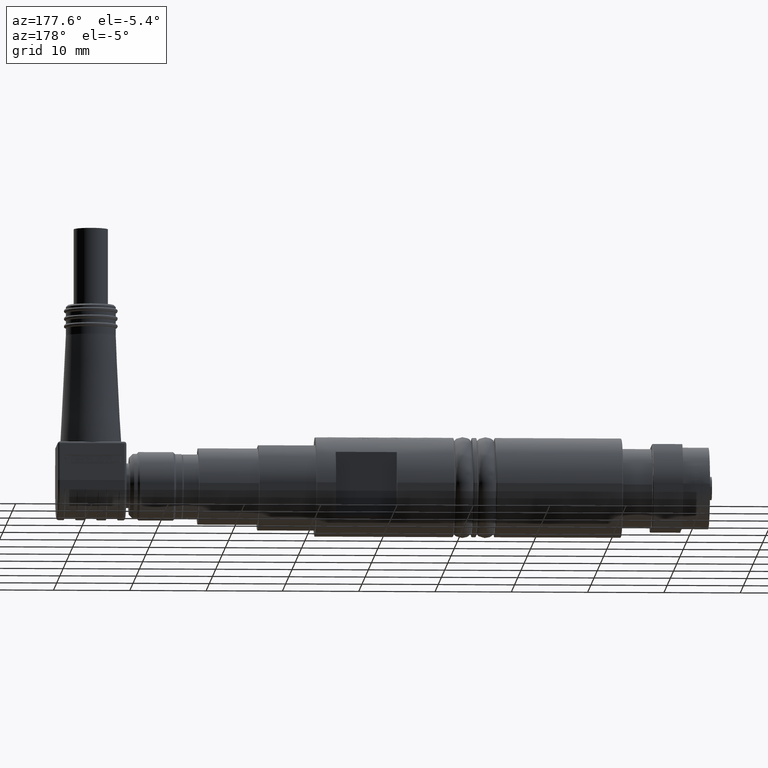
[diagram: clean part render]
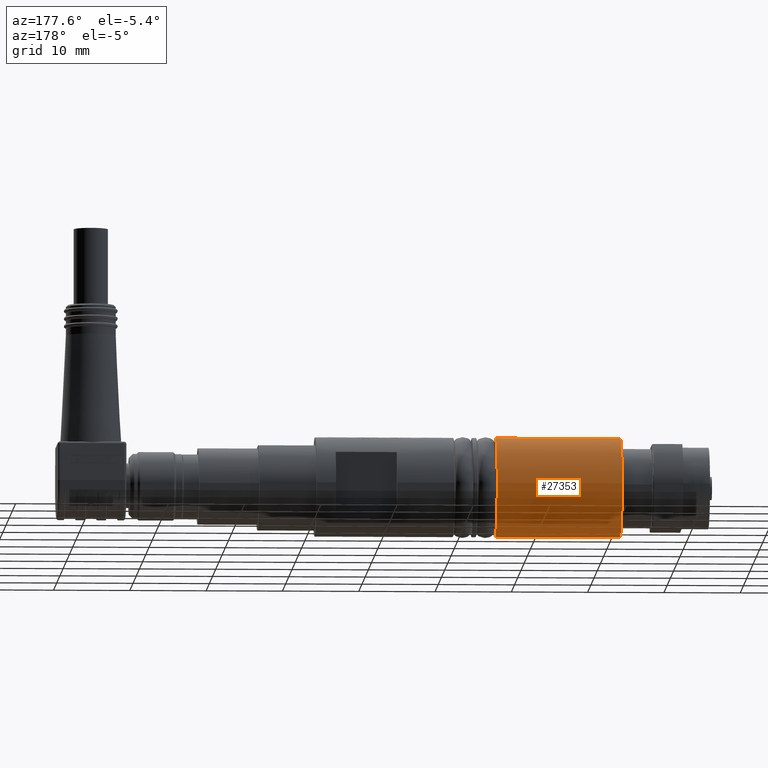
[diagram: same view with one face highlighted and labeled with its STEP entity id]
A machine part, auxiliary view. The second image highlights one B-rep face of the part: STEP entity #27353.
In plain terms, the highlighted cylindrical surface (bore or boss wall) has radius 6.5 mm, axis along (1, 0, 0).
Its self-contained STEP definition (entity closure, byte-faithful):
#1422=FACE_BOUND('',#9929,.T.);
#7003=CYLINDRICAL_SURFACE('',#29131,0.255905511811024);
#8377=FACE_OUTER_BOUND('',#9928,.T.);
#9928=EDGE_LOOP('',(#24377));
#9929=EDGE_LOOP('',(#24378));
#10574=CIRCLE('',#29130,0.255905511811024);
#10575=CIRCLE('',#29132,0.255905511811024);
#13232=VERTEX_POINT('',#51222);
#13233=VERTEX_POINT('',#51225);
#16970=EDGE_CURVE('',#13232,#13232,#10574,.T.);
#16971=EDGE_CURVE('',#13233,#13233,#10575,.T.);
#24377=ORIENTED_EDGE('',*,*,#16971,.F.);
#24378=ORIENTED_EDGE('',*,*,#16970,.F.);
#27353=ADVANCED_FACE('',(#8377,#1422),#7003,.T.);
#29130=AXIS2_PLACEMENT_3D('',#51223,#35017,#35018);
#29131=AXIS2_PLACEMENT_3D('',#51224,#35019,#35020);
#29132=AXIS2_PLACEMENT_3D('',#51226,#35021,#35022);
#35017=DIRECTION('center_axis',(-1.,-1.19579530510671E-16,0.));
#35018=DIRECTION('ref_axis',(1.20096240644548E-16,-1.,1.83697019872103E-16));
#35019=DIRECTION('center_axis',(1.,1.19579530510671E-16,0.));
#35020=DIRECTION('ref_axis',(-1.19579530510671E-16,1.,0.));
#35021=DIRECTION('center_axis',(1.,1.19579530510671E-16,0.));
#35022=DIRECTION('ref_axis',(1.20096240644548E-16,-1.,1.83697019872103E-16));
#51222=CARTESIAN_POINT('',(0.325,0.255905511811024,-7.83484664808838E-17));
#51223=CARTESIAN_POINT('Origin',(0.325,3.88633474159679E-17,0.));
#51224=CARTESIAN_POINT('Origin',(0.64744094488189,7.74206842223613E-17,
0.));
#51225=CARTESIAN_POINT('',(0.969881889763779,0.255905511811024,-1.56696932961768E-17));
#51226=CARTESIAN_POINT('Origin',(0.969881889763779,1.15978021028755E-16,
0.));